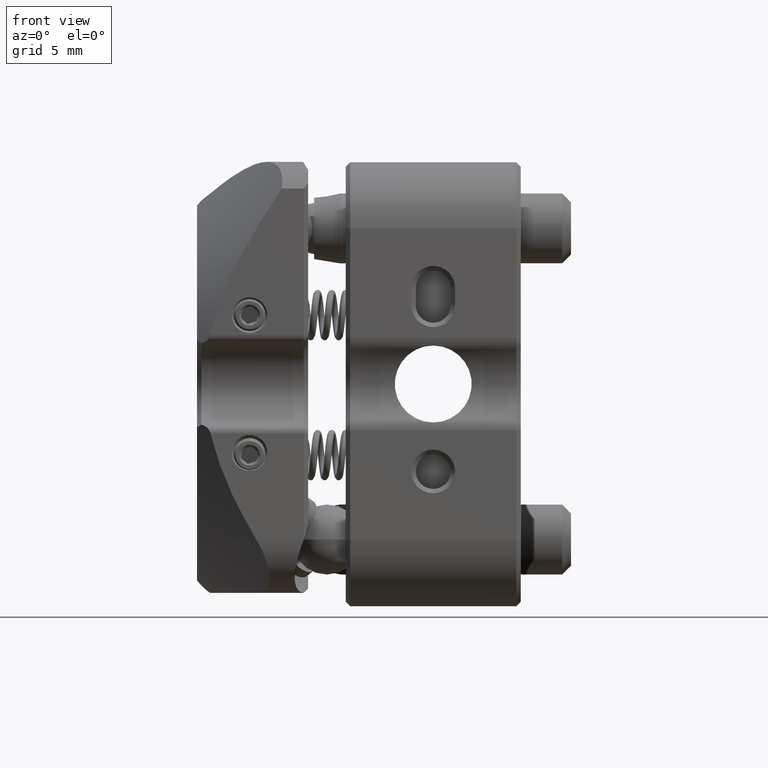
[diagram: clean part render]
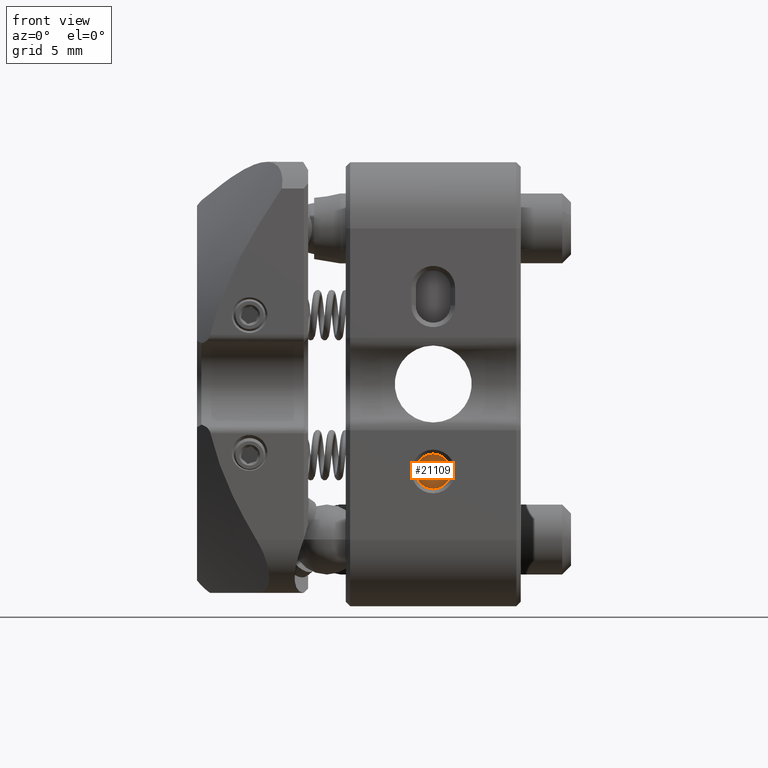
[diagram: same view with one face highlighted and labeled with its STEP entity id]
A machine part, front view. The second image highlights one B-rep face of the part: STEP entity #21109.
In plain terms, the highlighted planar face has unit normal (0, 1, 0).
Its self-contained STEP definition (entity closure, byte-faithful):
#401 = FACE_OUTER_BOUND ( 'NONE', #5588, .T. ) ;
#4065 = CARTESIAN_POINT ( 'NONE',  ( -1.658327668141555227E-15, -10.69999999999999574, -5.000000000000000888 ) ) ;
#5588 = EDGE_LOOP ( 'NONE', ( #56313 ) ) ;
#8761 = DIRECTION ( 'NONE',  ( 0.000000000000000000, -0.000000000000000000, 1.000000000000000000 ) ) ;
#10182 = AXIS2_PLACEMENT_3D ( 'NONE', #4065, #55112, #8761 ) ;
#13785 = AXIS2_PLACEMENT_3D ( 'NONE', #36337, #56800, #37321 ) ;
#21109 = ADVANCED_FACE ( 'NONE', ( #401 ), #61845, .F. ) ;
#27727 = CIRCLE ( 'NONE', #13785, 0.9999999999999991118 ) ;
#36337 = CARTESIAN_POINT ( 'NONE',  ( -1.224646799147353256E-15, -10.69999999999999574, -5.000000000000000888 ) ) ;
#37321 = DIRECTION ( 'NONE',  ( 0.000000000000000000, 0.000000000000000000, -1.000000000000000000 ) ) ;
#41416 = EDGE_CURVE ( 'NONE', #50477, #50477, #27727, .T. ) ;
#46753 = CARTESIAN_POINT ( 'NONE',  ( -1.224646799147353256E-15, -10.69999999999999574, -6.000000000000000000 ) ) ;
#50477 = VERTEX_POINT ( 'NONE', #46753 ) ;
#55112 = DIRECTION ( 'NONE',  ( 0.000000000000000000, 1.000000000000000000, 0.000000000000000000 ) ) ;
#56313 = ORIENTED_EDGE ( 'NONE', *, *, #41416, .T. ) ;
#56800 = DIRECTION ( 'NONE',  ( -0.000000000000000000, -1.000000000000000000, -0.000000000000000000 ) ) ;
#61845 = PLANE ( 'NONE',  #10182 ) ;